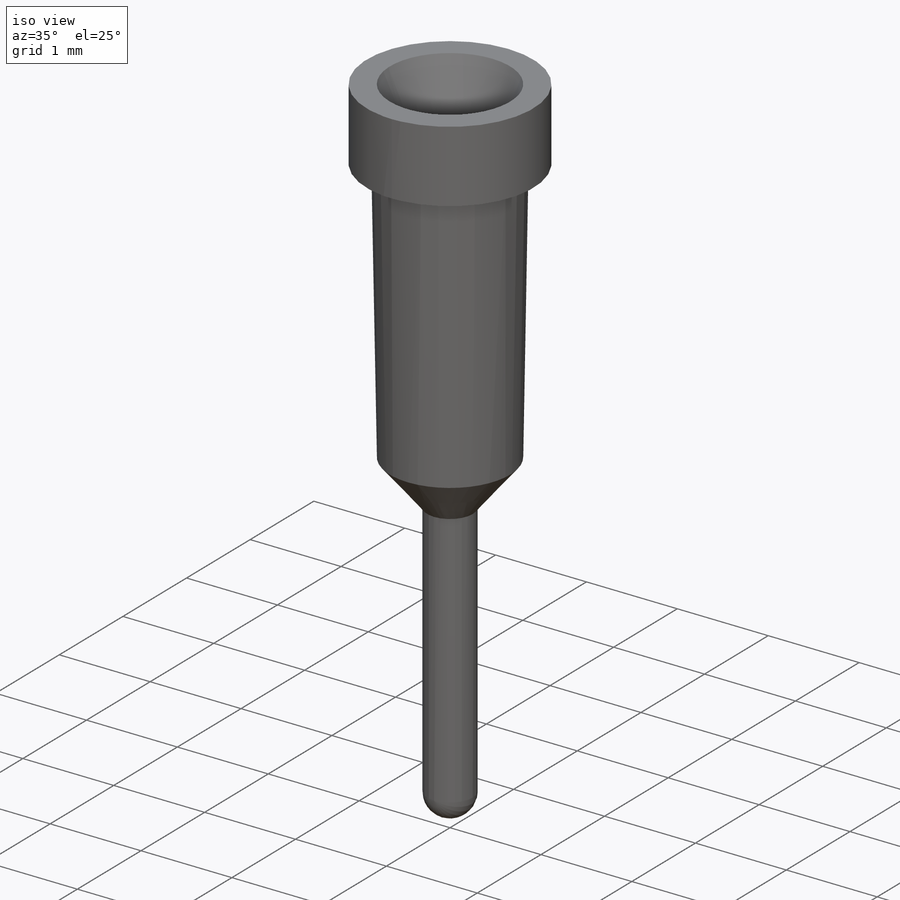
[diagram: iso view]
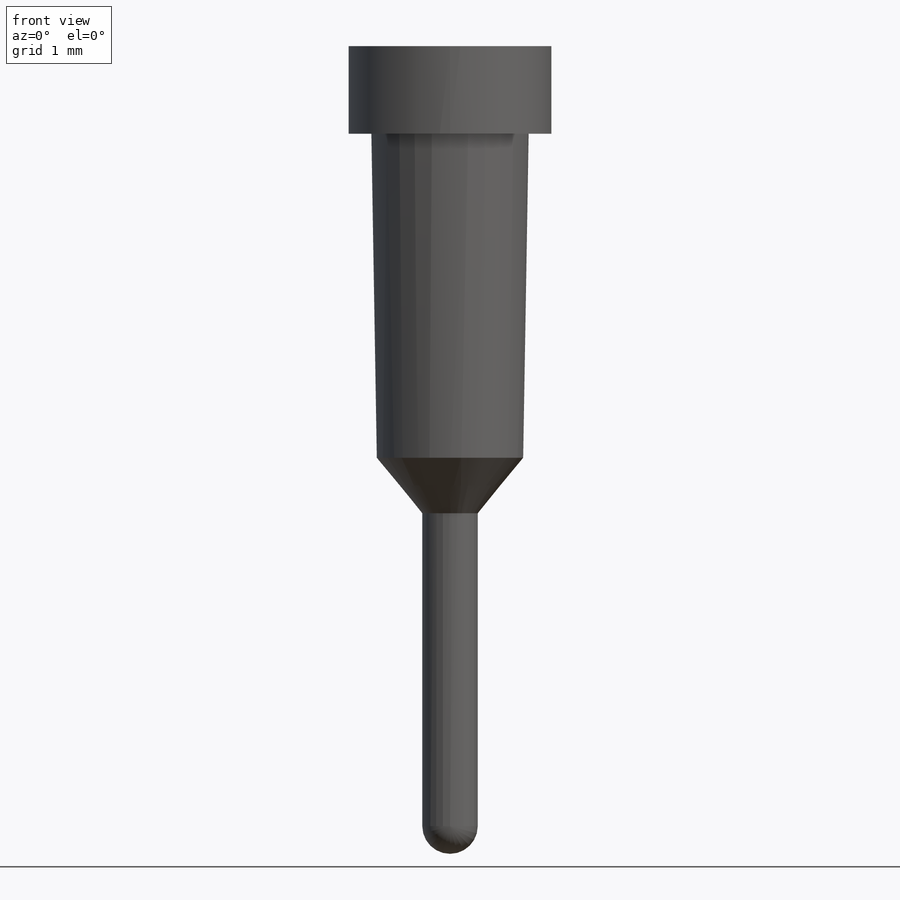
[diagram: front view]
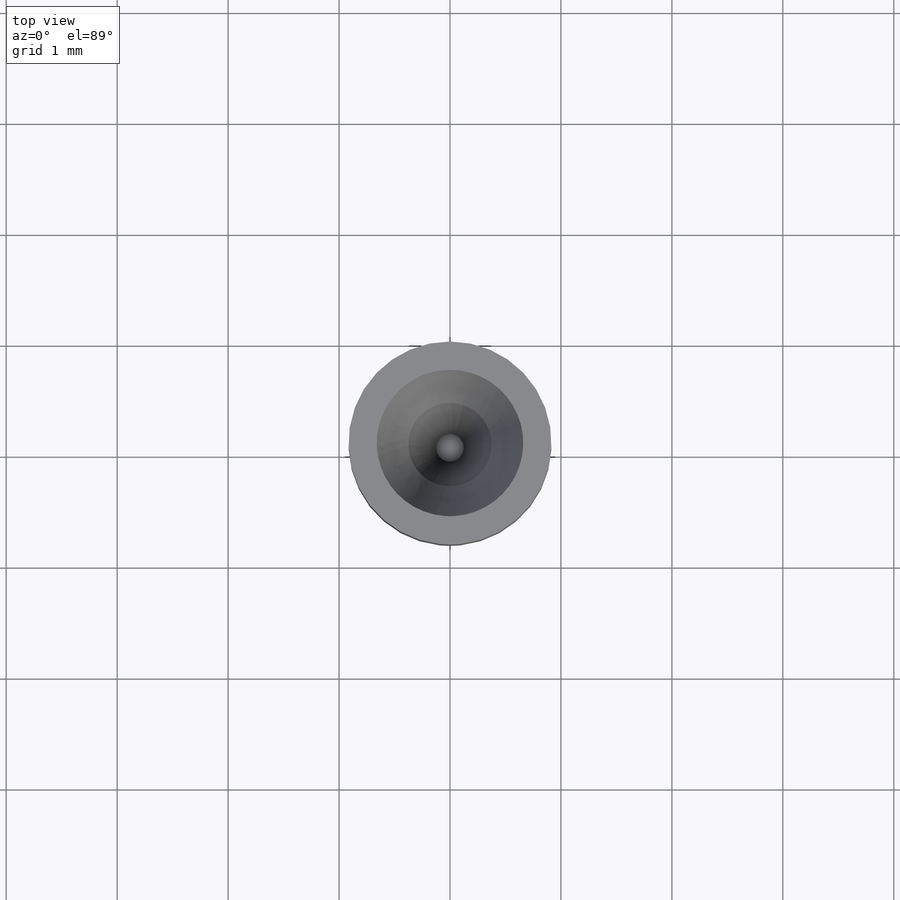
[diagram: top view]
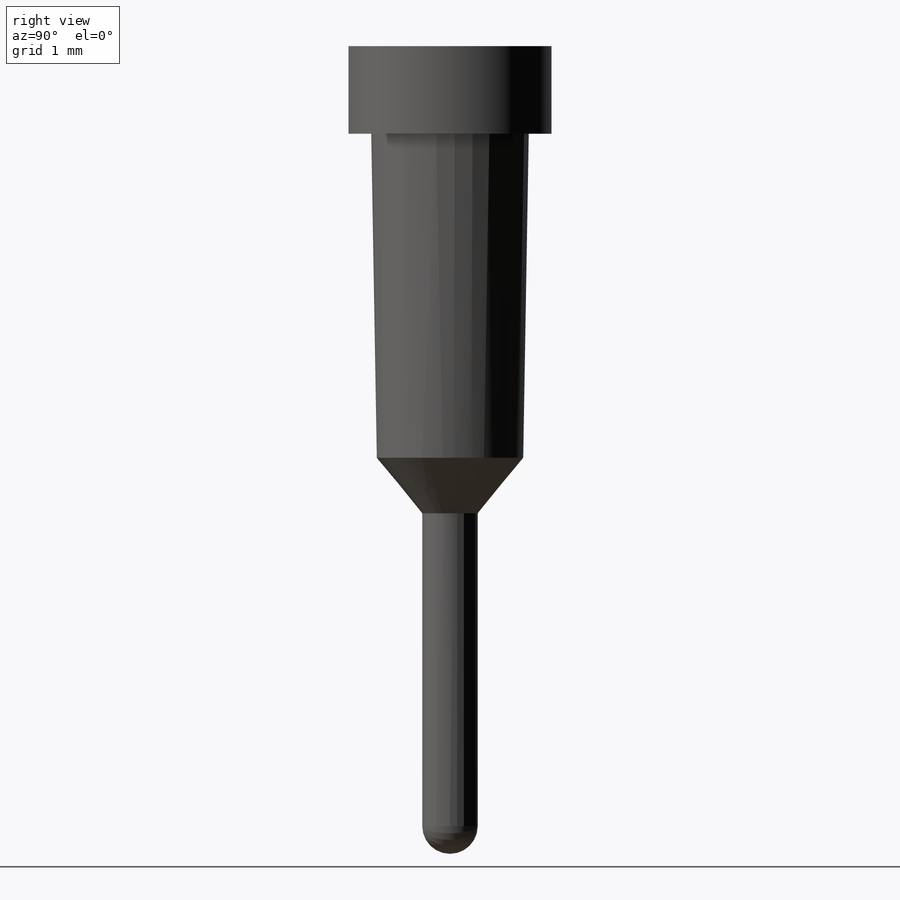
[diagram: right view]
SOLIDWORKS PART (.sldprt)
format: sldprt  version: not decoded by parser v0  size: 218,624 bytes
history: native  units: mm
features: sketch x8, extrude x3, plane x3, fillet x2, material x1 (+13 scaffold rows collapsed)
feature tree (30):
  scaffold x13  (default folders/planes/origin — collapsed)
  material  "Material <not specified>"
  sketch  "Sketch5"  dims[D1=1.83mm]
  extrude  "Boss-Extrude1"  Depth=0.78mm
  sketch  "Sketch6"  dims[D1=1.42mm]
  plane  "Plane5"  Offset=2.92mm
  sketch  "Sketch8"  dims[D1=1.32mm]
  plane  "Plane6"  Offset=0.5mm
  sketch  "Sketch9"  dims[D1=0.5mm]
  extrude  "Loft3"  [1 undecoded]
  sketch  "Sketch10"
  extrude  "Boss-Extrude3"  Depth=3.07mm
  fillet  "Fillet1"  Radius=0.25mm
  sketch  "Sketch12"  dims[D1=1.32mm]
  sketch  "Sketch13"  dims[D1=0.75mm]
  plane  "Plane7"  Offset=2.5mm
  sketch  "Sketch14"  dims[D1=0.25mm]
  fillet  "Cut-Loft2"  [1 undecoded]
decode coverage: 10 of 13 modeling features carry decoded parameters
note: 2 parameter values undecoded
note: suppression state not decoded; provenance and decode notes live in map.json
